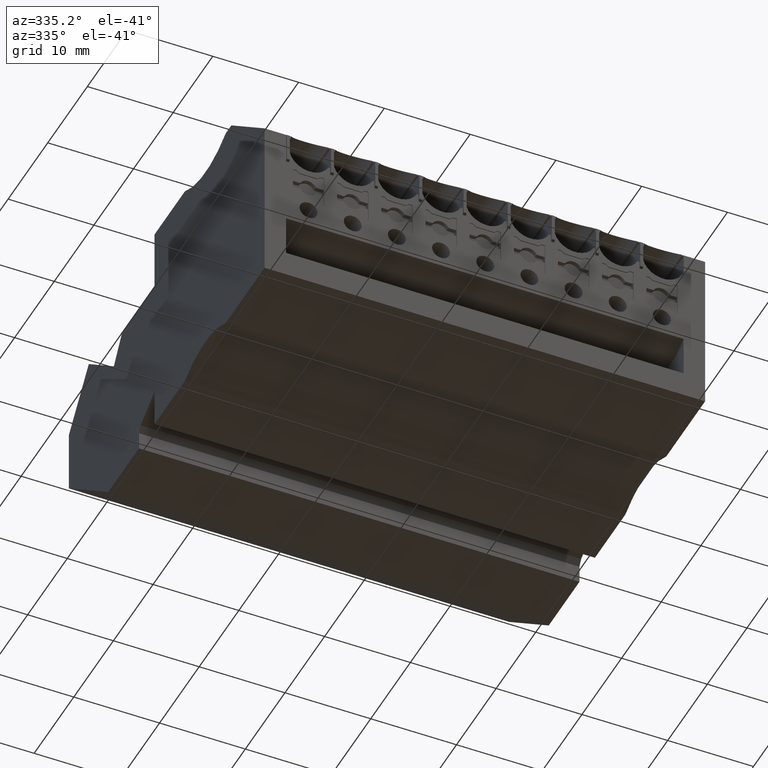
[diagram: clean part render]
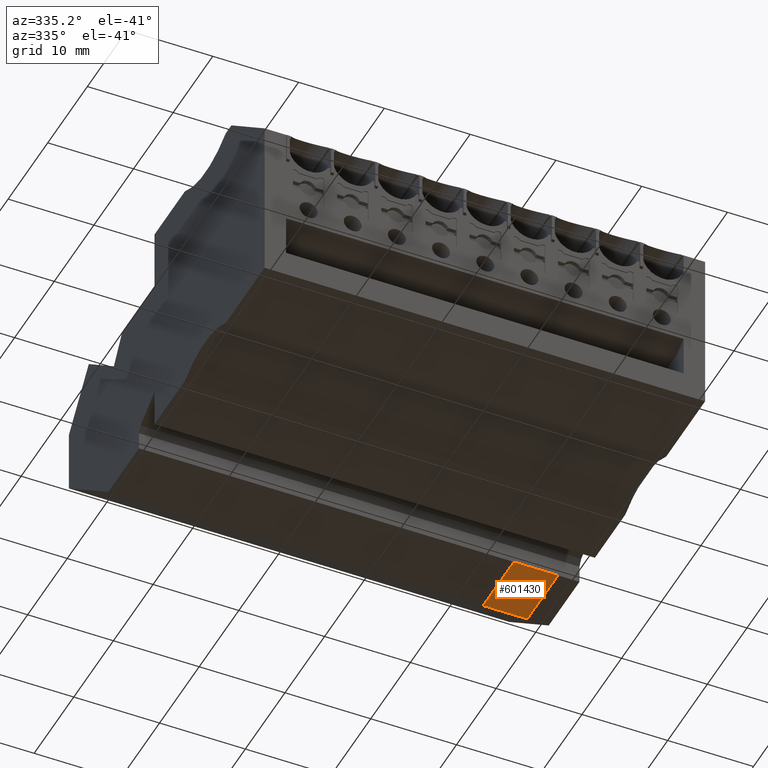
[diagram: same view with one face highlighted and labeled with its STEP entity id]
A machine part, auxiliary view. The second image highlights one B-rep face of the part: STEP entity #601430.
In plain terms, the highlighted planar face has unit normal (0, 0, -1).
Its self-contained STEP definition (entity closure, byte-faithful):
#6330=CARTESIAN_POINT('',(432.124069231659,670.634347625639,
68.1199999952488));
#6340=DIRECTION('',(-1.20456572490157E-9,-1.,5.82229711732946E-10));
#6350=DIRECTION('',(1.,-1.20456572494379E-9,-7.2511997674725E-11));
#6360=AXIS2_PLACEMENT_3D('',#6330,#6340,#6350);
#6370=PLANE('',#6360);
#50230=CARTESIAN_POINT('',(459.905573345635,670.634347616593,
109.31999999732));
#50240=VERTEX_POINT('',#50230);
#98770=CARTESIAN_POINT('',(452.153158754944,670.6343476255,
109.319999997935));
#98780=VERTEX_POINT('',#98770);
#351170=CARTESIAN_POINT('',(436.268902529443,670.634347644634,
109.319999999193));
#351180=DIRECTION('',(1.,-1.20456572494379E-9,-7.92260575924475E-11));
#351190=VECTOR('',#351180,1.);
#351200=LINE('',#351170,#351190);
#351210=EDGE_CURVE('',#98780,#50240,#351200,.T.);
#574130=CARTESIAN_POINT('',(452.153158744947,670.634347620927,
114.469999987796));
#574140=VERTEX_POINT('',#574130);
#574170=CARTESIAN_POINT('',(452.153158748982,670.634347620334,
114.469999975722));
#574180=DIRECTION('',(1.64639387953552E-10,5.03691111828967E-10,1.));
#574190=VECTOR('',#574180,1.);
#574200=LINE('',#574170,#574190);
#574210=CARTESIAN_POINT('',(452.15315874857,670.634347619075,
111.969999982313));
#574220=VERTEX_POINT('',#574210);
#574230=EDGE_CURVE('',#574220,#574140,#574200,.T.);
#574250=CARTESIAN_POINT('',(452.153158749527,670.634347619633,
109.319999998282));
#574260=DIRECTION('',(9.73617497942318E-11,5.56333266454329E-10,1.));
#574270=VECTOR('',#574260,1.);
#574280=LINE('',#574250,#574270);
#574290=EDGE_CURVE('',#98780,#574220,#574280,.T.);
#590430=CARTESIAN_POINT('',(459.905573335023,670.634347609201,
109.319999999566));
#590440=DIRECTION('',(2.48917491584714E-10,5.5633326625038E-10,1.));
#590450=VECTOR('',#590440,1.);
#590460=LINE('',#590430,#590450);
#590470=CARTESIAN_POINT('',(459.905573329733,670.634347610675,
111.969999980432));
#590480=VERTEX_POINT('',#590470);
#590490=EDGE_CURVE('',#50240,#590480,#590460,.T.);
#590510=CARTESIAN_POINT('',(459.905573327921,670.634347609677,
114.46999997318));
#590520=DIRECTION('',(-3.51177059947896E-10,-5.0369111157255E-10,-1.));
#590530=VECTOR('',#590520,1.);
#590540=LINE('',#590510,#590530);
#590550=CARTESIAN_POINT('',(459.905573330389,670.63434761916,
114.469999986504));
#590560=VERTEX_POINT('',#590550);
#590570=EDGE_CURVE('',#590560,#590480,#590540,.T.);
#601300=ORIENTED_EDGE('',*,*,#574290,.F.);
#601310=ORIENTED_EDGE('',*,*,#574230,.F.);
#601320=CARTESIAN_POINT('',(432.568902509457,670.634347652089,
114.469999991061));
#601330=DIRECTION('',(1.,-1.20456561392153E-9,-1.66699003060571E-10));
#601340=VECTOR('',#601330,1.);
#601350=LINE('',#601320,#601340);
#601360=EDGE_CURVE('',#574140,#590560,#601350,.T.);
#601370=ORIENTED_EDGE('',*,*,#601360,.F.);
#601380=ORIENTED_EDGE('',*,*,#590570,.F.);
#601390=ORIENTED_EDGE('',*,*,#590490,.T.);
#601400=ORIENTED_EDGE('',*,*,#351210,.T.);
#601410=EDGE_LOOP('',(#601400,#601390,#601380,#601370,#601310,#601300));
#601420=FACE_OUTER_BOUND('',#601410,.T.);
#601430=ADVANCED_FACE('',(#601420),#6370,.T.);